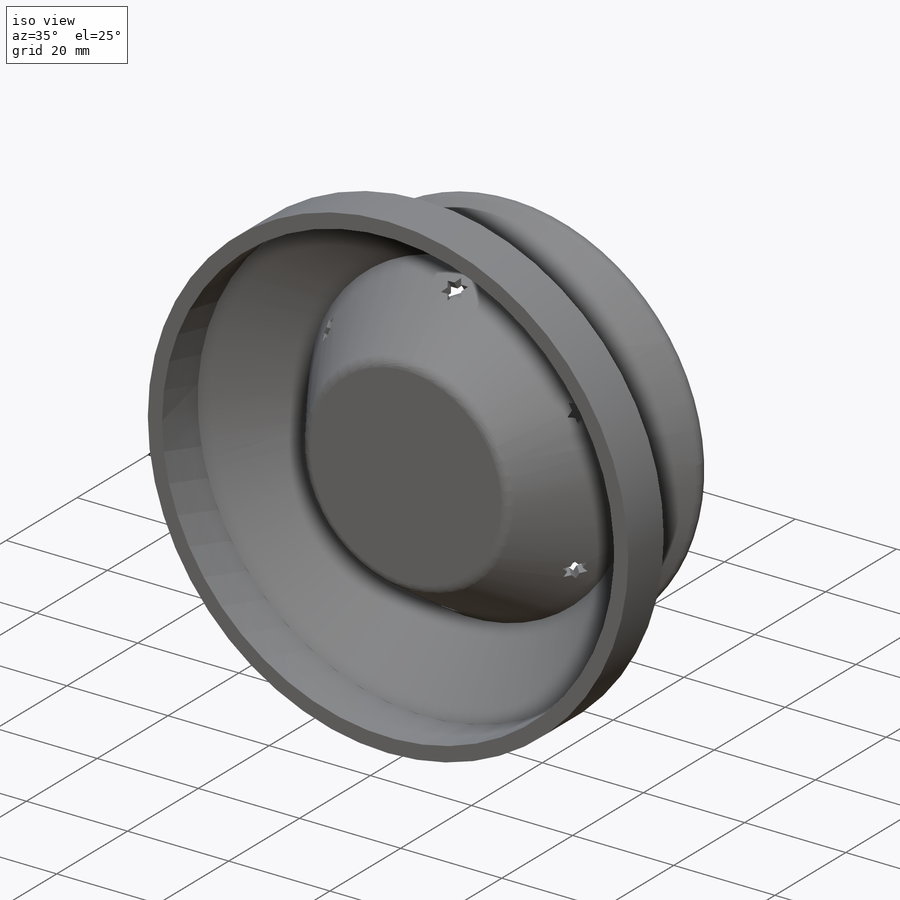
[diagram: iso view]
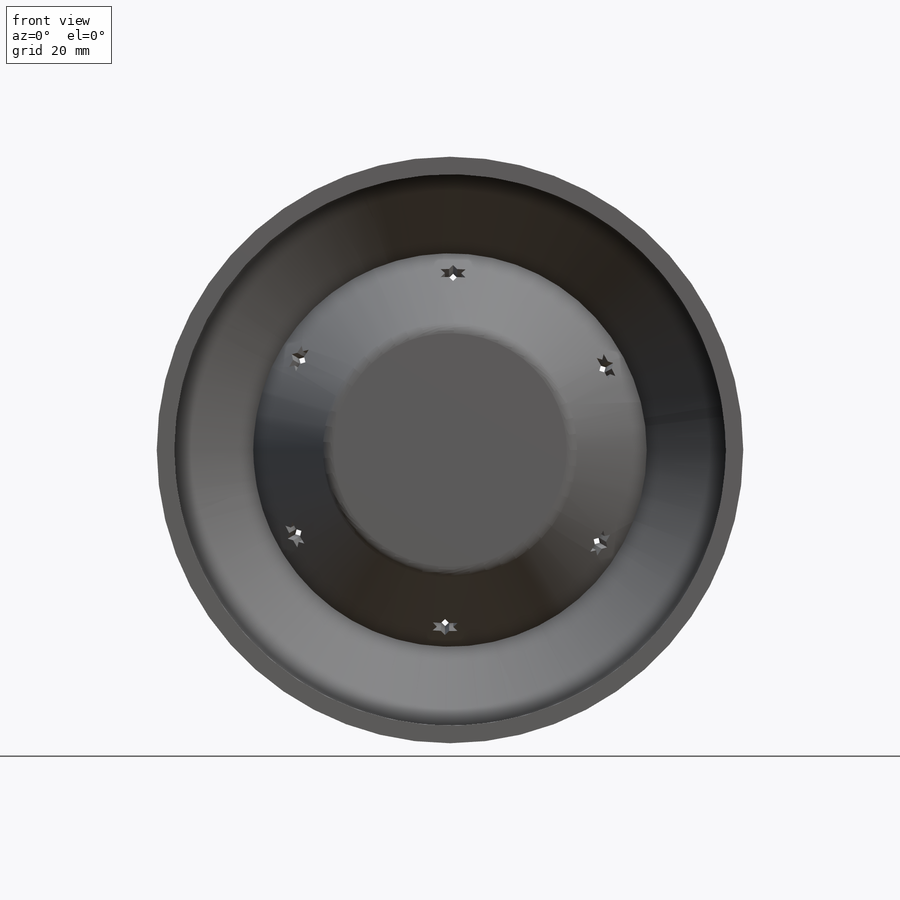
[diagram: front view]
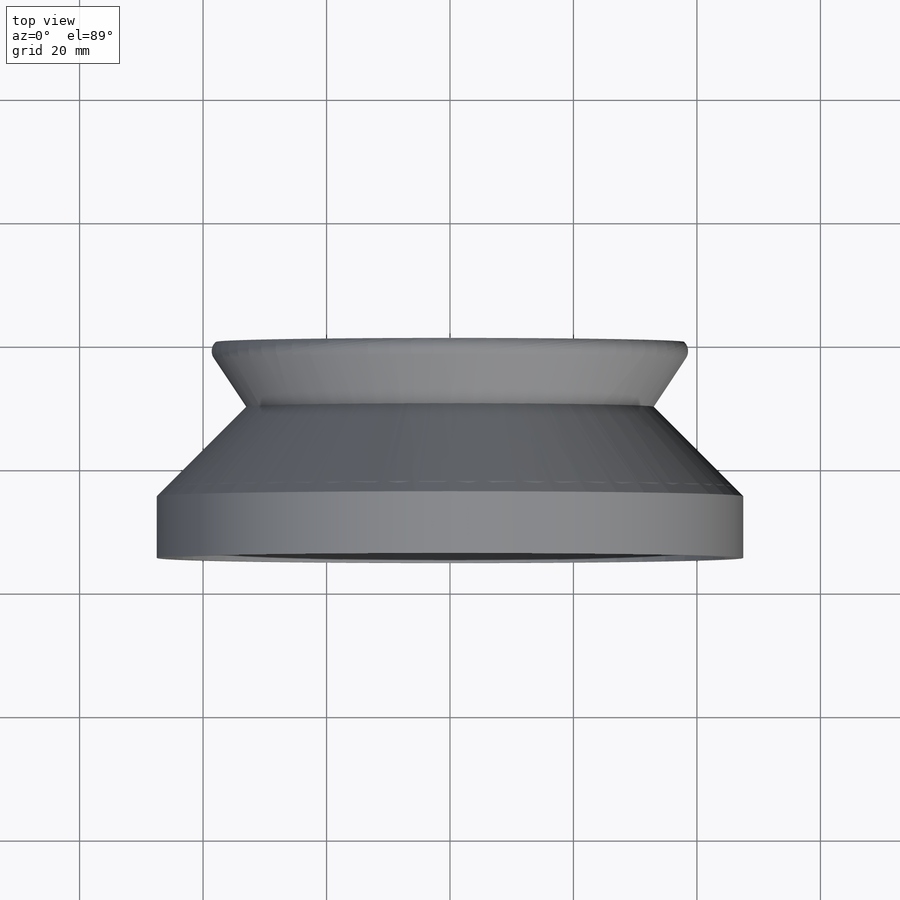
[diagram: top view]
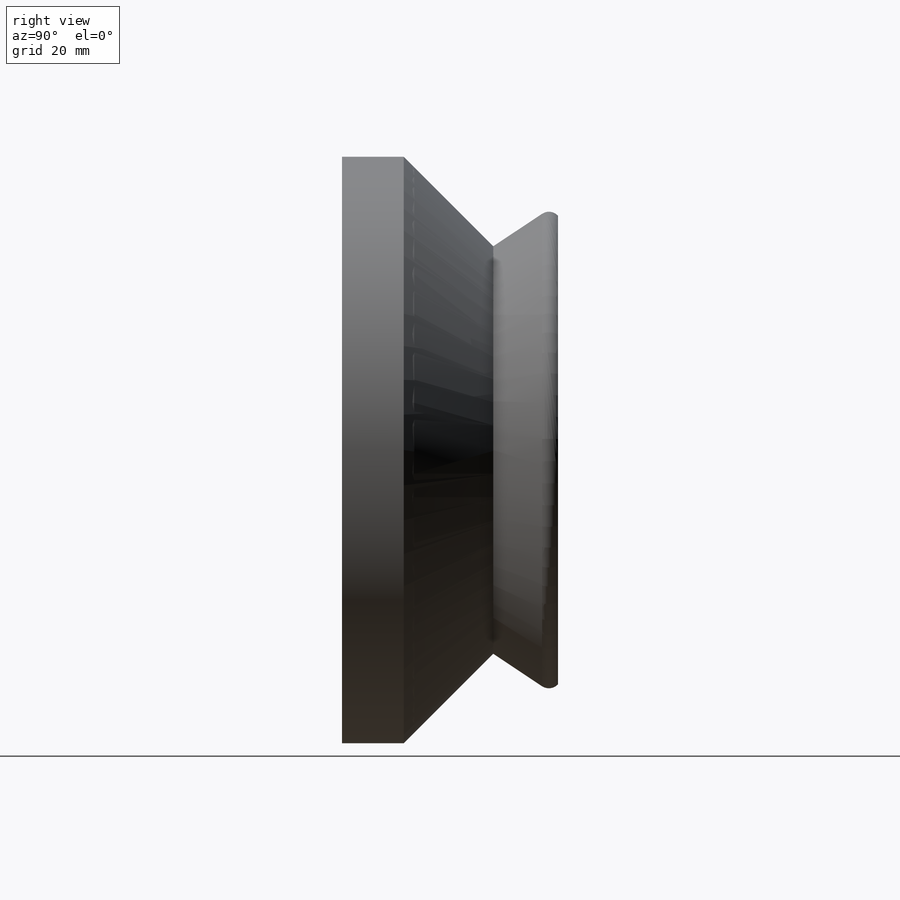
[diagram: right view]
SOLIDWORKS PART (.sldprt)
format: sldprt  version: not decoded by parser v0  size: 760,832 bytes
history: native  units: mm
features: sketch x11, fillet x6, extrude x5, shell x3, cut_extrude x3, revolve x2, pattern_circular x2, plane x2, material x1 (+12 scaffold rows collapsed)
feature tree (47):
  scaffold x12  (default folders/planes/origin — collapsed)
  material  "Material <not specified>"
  sketch  "Sketch1"  dims[c1.D1=20.0mm c1.D2=20.0mm c1.D3=30.0mm c2.D2=20.0mm c3.D2=60.0deg c4.D2=40.0mm c4.D4=~36.055513mm c5.D4=~56.309932deg c6.D4=30.0mm]
  revolve  "Revolve1"  Angle=360deg
  shell  "Shell1"  Thickness=1.7mm
  sketch  "Sketch3"  dims[D1=40.0mm]
  extrude  "Boss-Extrude1"  [1 undecoded]
  shell  "Shell2"  Thickness=2mm
  sketch  "Sketch4"  dims[c1.D1=4.0mm c1.D3=4.0mm c2.D1=2.0mm c2.D3=2.0mm c3.D1=~69.523375mm c3.D2=3.0mm c3.D3=~3.464102mm c4.D3=90.0deg c5.D3=~3.464102mm c6.D3=90.0deg c7.D3=~3.464102mm c7.D1=~3.464102mm c8.D1=60.0deg c9.D1=3.0mm c9.D2=3.0mm c10.D1=3.0mm c10.D3=3.0mm c11.D1=~4.454612mm c12.D1=90.0deg c13.D1=5.0mm c13.D2=~19.435243mm c13.D3=9.0mm c13.D4=3.0mm c14.D4=90.0deg c15.D4=5.0mm c15.D5=~6.113249mm c15.D6=~11.886751mm]
  cut_extrude  "Magen david 1"  Depth=25mm
  pattern_circular  "CirPattern2"  Count=6 Angle=360deg
  sketch  "Sketch6"  dims[D1=~24.194799mm]
  plane  "Plane2"
  sketch  "Sketch8"  dims[c1.D1=2.0mm c1.D2=2.0mm c2.D1=2.0mm c2.D2=2.0mm c3.D1=2.0mm c3.D2=2.0mm c3.D3=~1.732051mm c3.D4=6.0mm c3.D5=~2.06817mm c3.D6=~3.222871mm c4.D1=4.0mm c4.D2=6.86mm c4.D3=~6.878197mm c5.D2=6.86mm c5.D3=~3.464102mm c5.D4=0.5mm c5.D5=0.0mm]
  cut_extrude  "magen david 2"  Depth=4mm
  pattern_circular  "CirPattern5"  Count=6 Angle=299deg
  plane  "Plane3"  Offset=10mm
  sketch  "Sketch9"  dims[D1=65.0mm]
  extrude  "skirt"  Depth=15mm
  shell  "Shell3"  Thickness=2mm
  fillet  "Fillet1"  Radius=2mm
  fillet  "Fillet3"  Radius=1mm
  fillet  "Fillet5"  Radius=2mm
  sketch  "Sketch11"  dims[D1=2.5mm]
  extrude  "Boss-Extrude3"  Depth=2mm
  sketch  "Sketch17"  dims[D1=28.0mm]
  extrude  "inner cone"  Depth=10mm
  sketch  "Sketch19"  dims[D1=1.5mm]
  cut_extrude  "cone cut"  Depth=5mm
  fillet  "Fillet7"  Radius=1mm
  sketch  "Sketch20"  dims[c1.D1=1.5mm c1.D2=~0.212228mm c2.D1=0.1mm c2.D2=~0.682545mm c2.D8=~1.372964mm c3.D1=~3.264527mm c3.D2=1.0mm c3.D3=1.8mm c3.D4=~1.496385mm c3.D5=19.8925mm c4.D2=~0.994171mm c4.D3=~1.695898mm c4.D4=18.1831mm c4.D5=~0.181159mm c4.D6=~0.952105mm c4.D7=~0.09058mm c4.D8=~19.598663mm c4.D1=0.0mm]
  revolve  "Revolve5"  Angle=360deg
  fillet  "Fillet8"  Radius=10mm
  sketch  "Sketch31"  dims[c1.D1=~89.343146mm c1.D2=95.0mm c2.D1=0.5mm]
  extrude  "Boss-Extrude5"  Depth=10mm
  fillet  "Fillet9"  Radius=1mm
decode coverage: 31 of 32 modeling features carry decoded parameters
note: ~ marks probable driven/reference dimensions
note: 1 parameter value undecoded
note: suppression state not decoded; provenance and decode notes live in map.json
